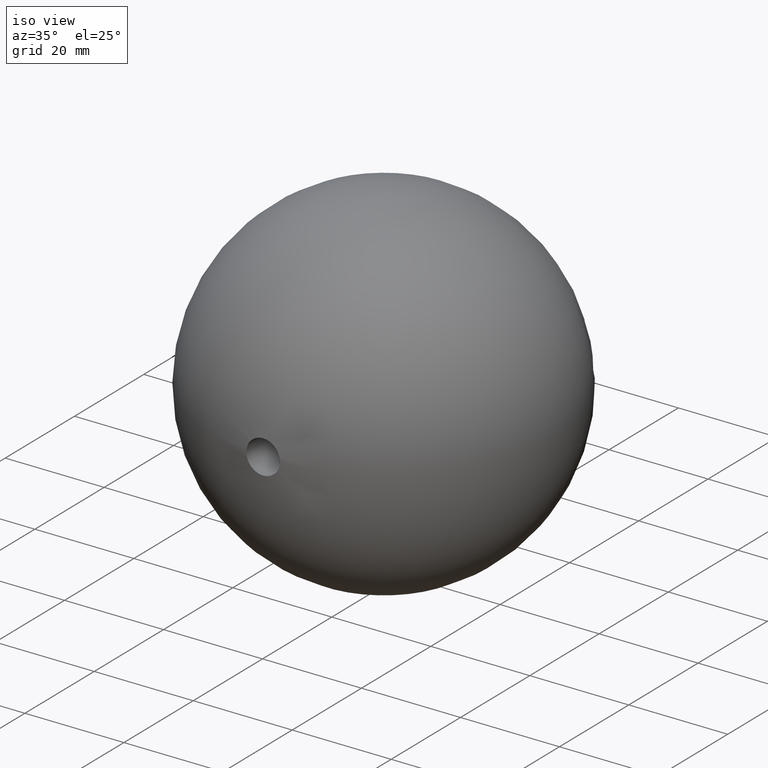
[diagram: clean part render]
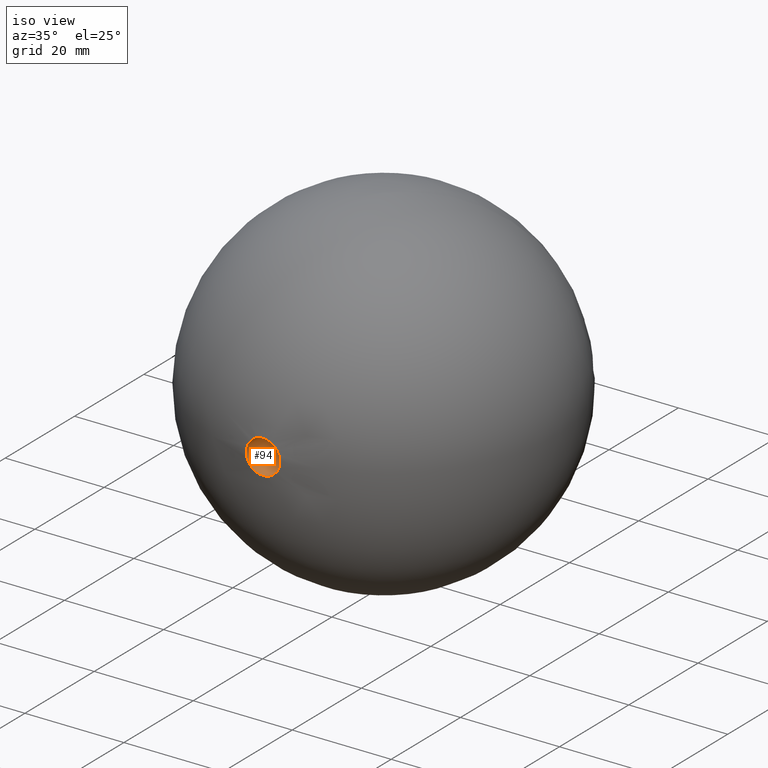
[diagram: same view with one face highlighted and labeled with its STEP entity id]
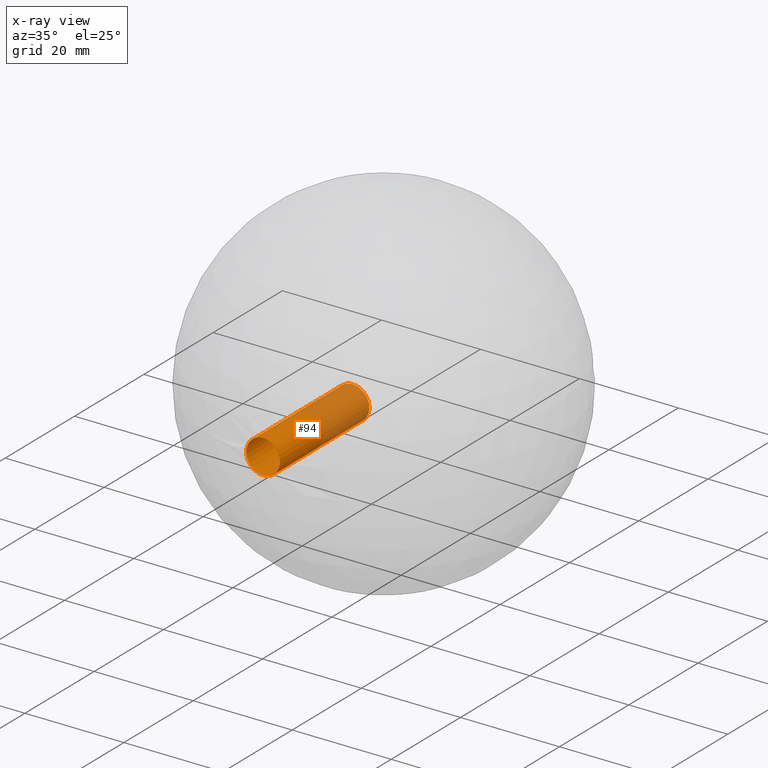
[diagram: x-ray of the same camera — body ghosted, the highlighted face saturated]
A machine part, iso view. The second image highlights one B-rep face of the part: STEP entity #94.
The next image is the same camera in x-ray: the body ghosted, the highlighted face saturated — about 42% of this face is hidden behind the body in this view.
In plain terms, the highlighted cylindrical surface (bore or boss wall) has radius 3.4 mm, axis along (-0, -1, -0).
Its self-contained STEP definition (entity closure, byte-faithful):
#4 = DIRECTION ( 'NONE',  ( -0.000000000000000000, -1.000000000000000000, -0.000000000000000000 ) ) ;
#5 = CIRCLE ( 'NONE', #121, 3.399999999999985256 ) ;
#6 = CARTESIAN_POINT ( 'NONE',  ( 0.000000000000000000, 25.99999999999999645, 0.000000000000000000 ) ) ;
#13 = DIRECTION ( 'NONE',  ( -0.000000000000000000, -1.000000000000000000, -0.000000000000000000 ) ) ;
#15 = VERTEX_POINT ( 'NONE', #104 ) ;
#16 = FACE_OUTER_BOUND ( 'NONE', #132, .T. ) ;
#27 = ORIENTED_EDGE ( 'NONE', *, *, #80, .T. ) ;
#29 = CYLINDRICAL_SURFACE ( 'NONE', #31, 3.399999999999987033 ) ;
#31 = AXIS2_PLACEMENT_3D ( 'NONE', #115, #13, #98 ) ;
#40 = ORIENTED_EDGE ( 'NONE', *, *, #45, .F. ) ;
#45 = EDGE_CURVE ( 'NONE', #123, #123, #5, .T. ) ;
#56 = CARTESIAN_POINT ( 'NONE',  ( 0.000000000000000000, 25.99999999999999645, -3.399999999999985256 ) ) ;
#71 = FACE_OUTER_BOUND ( 'NONE', #122, .T. ) ;
#73 = DIRECTION ( 'NONE',  ( 0.000000000000000000, 0.000000000000000000, 1.000000000000000000 ) ) ;
#75 = DIRECTION ( 'NONE',  ( 0.000000000000000000, 0.000000000000000000, -1.000000000000000000 ) ) ;
#80 = EDGE_CURVE ( 'NONE', #15, #15, #91, .T. ) ;
#91 = CIRCLE ( 'NONE', #100, 3.399999999999987033 ) ;
#94 = ADVANCED_FACE ( 'NONE', ( #16, #71 ), #29, .F. ) ;
#98 = DIRECTION ( 'NONE',  ( 0.000000000000000000, 0.000000000000000000, -1.000000000000000000 ) ) ;
#100 = AXIS2_PLACEMENT_3D ( 'NONE', #118, #4, #73 ) ;
#104 = CARTESIAN_POINT ( 'NONE',  ( 0.000000000000000000, 0.1655343086764127225, 3.399999999999987033 ) ) ;
#115 = CARTESIAN_POINT ( 'NONE',  ( 0.000000000000000000, 0.000000000000000000, 0.000000000000000000 ) ) ;
#118 = CARTESIAN_POINT ( 'NONE',  ( 0.000000000000000000, 0.1655343086764127225, 0.000000000000000000 ) ) ;
#121 = AXIS2_PLACEMENT_3D ( 'NONE', #6, #126, #75 ) ;
#122 = EDGE_LOOP ( 'NONE', ( #40 ) ) ;
#123 = VERTEX_POINT ( 'NONE', #56 ) ;
#126 = DIRECTION ( 'NONE',  ( -0.000000000000000000, -1.000000000000000000, -0.000000000000000000 ) ) ;
#132 = EDGE_LOOP ( 'NONE', ( #27 ) ) ;